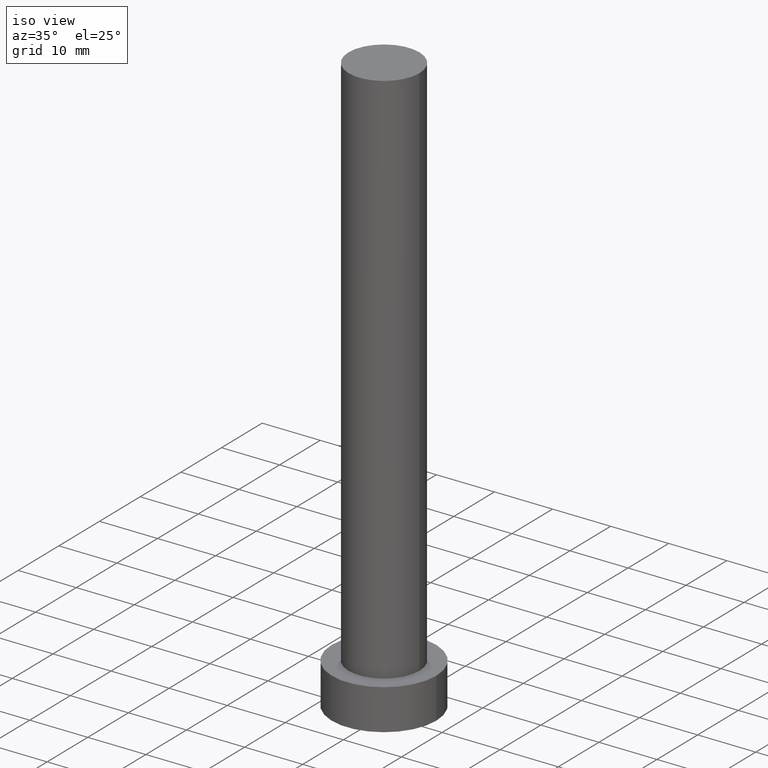
[diagram: clean part render]
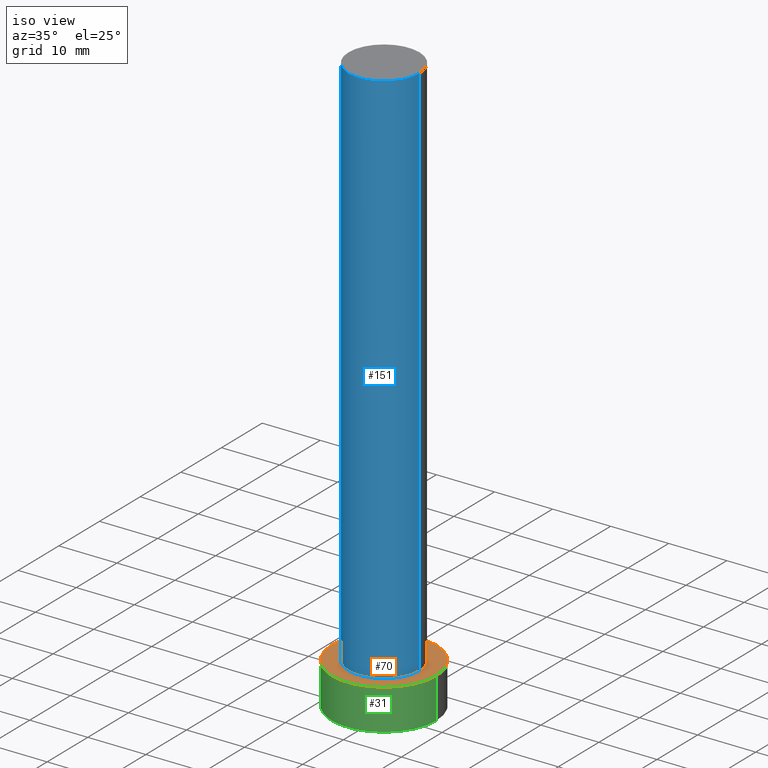
[diagram: same view with three faces highlighted in distinct colors, each labeled with its STEP entity id]
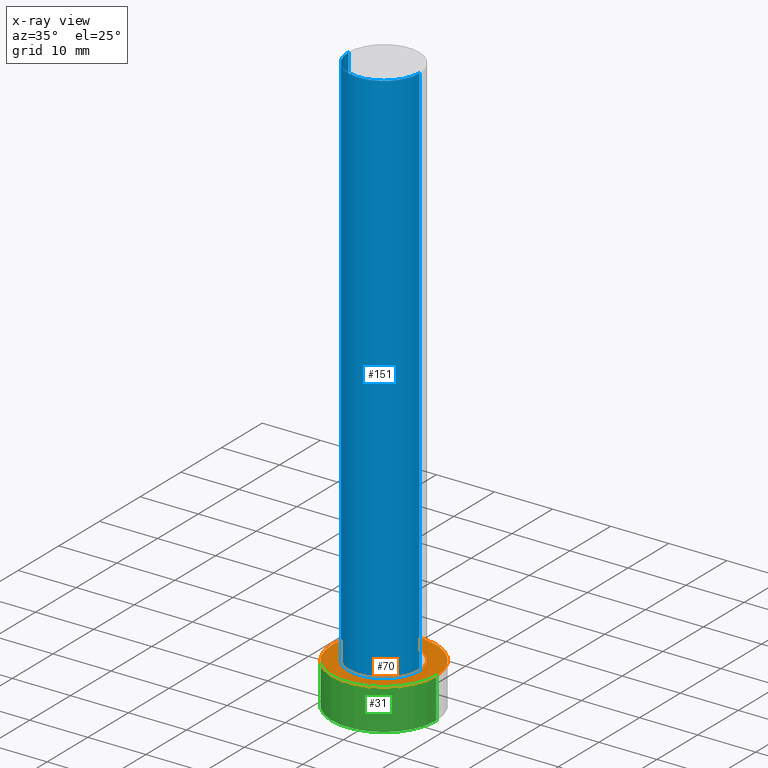
[diagram: x-ray of the same camera — body ghosted, the three highlighted faces saturated]
A machine part, iso view with three faces highlighted in distinct colors.
The next image is the same camera in x-ray (body ghosted, the three faces saturated) — at least one of them is partly hidden behind the body in this view.
Their STEP definitions:

[orange] entity #70 — the highlighted planar face has unit normal (0, 0, 1).
#1 = DIRECTION ( 'NONE',  ( 0.000000000000000000, 0.000000000000000000, 1.000000000000000000 ) ) ;
#8 = DIRECTION ( 'NONE',  ( 1.000000000000000000, 0.000000000000000000, 0.000000000000000000 ) ) ;
#16 = DIRECTION ( 'NONE',  ( 1.000000000000000000, 0.000000000000000000, 0.000000000000000000 ) ) ;
#24 = CARTESIAN_POINT ( 'NONE',  ( 0.000000000000000000, 0.000000000000000000, 7.000000000000000000 ) ) ;
#36 = EDGE_LOOP ( 'NONE', ( #55, #193 ) ) ;
#38 = VERTEX_POINT ( 'NONE', #191 ) ;
#45 = CIRCLE ( 'NONE', #81, 6.099999999999999645 ) ;
#55 = ORIENTED_EDGE ( 'NONE', *, *, #75, .T. ) ;
#59 = VERTEX_POINT ( 'NONE', #123 ) ;
#61 = EDGE_LOOP ( 'NONE', ( #212, #100 ) ) ;
#63 = CARTESIAN_POINT ( 'NONE',  ( 0.000000000000000000, 0.000000000000000000, 7.000000000000000000 ) ) ;
#70 = ADVANCED_FACE ( 'NONE', ( #229, #73 ), #168, .T. ) ;
#73 = FACE_OUTER_BOUND ( 'NONE', #36, .T. ) ;
#75 = EDGE_CURVE ( 'NONE', #38, #154, #206, .T. ) ;
#81 = AXIS2_PLACEMENT_3D ( 'NONE', #160, #88, #8 ) ;
#82 = AXIS2_PLACEMENT_3D ( 'NONE', #24, #1, #235 ) ;
#83 = AXIS2_PLACEMENT_3D ( 'NONE', #63, #185, #16 ) ;
#86 = DIRECTION ( 'NONE',  ( 0.000000000000000000, 0.000000000000000000, 1.000000000000000000 ) ) ;
#88 = DIRECTION ( 'NONE',  ( 0.000000000000000000, 0.000000000000000000, 1.000000000000000000 ) ) ;
#100 = ORIENTED_EDGE ( 'NONE', *, *, #105, .F. ) ;
#104 = AXIS2_PLACEMENT_3D ( 'NONE', #132, #108, #176 ) ;
#105 = EDGE_CURVE ( 'NONE', #245, #59, #127, .T. ) ;
#108 = DIRECTION ( 'NONE',  ( 0.000000000000000000, 0.000000000000000000, 1.000000000000000000 ) ) ;
#110 = CARTESIAN_POINT ( 'NONE',  ( 9.000000000000000000, 1.102182119232617714E-15, 7.000000000000000000 ) ) ;
#123 = CARTESIAN_POINT ( 'NONE',  ( -6.099999999999999645, 0.000000000000000000, 7.000000000000000000 ) ) ;
#127 = CIRCLE ( 'NONE', #104, 6.099999999999999645 ) ;
#132 = CARTESIAN_POINT ( 'NONE',  ( 0.000000000000000000, 0.000000000000000000, 7.000000000000000000 ) ) ;
#154 = VERTEX_POINT ( 'NONE', #110 ) ;
#156 = DIRECTION ( 'NONE',  ( 1.000000000000000000, 0.000000000000000000, 0.000000000000000000 ) ) ;
#159 = CARTESIAN_POINT ( 'NONE',  ( 0.000000000000000000, 0.000000000000000000, 7.000000000000000000 ) ) ;
#160 = CARTESIAN_POINT ( 'NONE',  ( 0.000000000000000000, 0.000000000000000000, 7.000000000000000000 ) ) ;
#162 = EDGE_CURVE ( 'NONE', #154, #38, #231, .T. ) ;
#168 = PLANE ( 'NONE',  #82 ) ;
#176 = DIRECTION ( 'NONE',  ( 1.000000000000000000, 0.000000000000000000, 0.000000000000000000 ) ) ;
#184 = AXIS2_PLACEMENT_3D ( 'NONE', #159, #86, #156 ) ;
#185 = DIRECTION ( 'NONE',  ( 0.000000000000000000, 0.000000000000000000, 1.000000000000000000 ) ) ;
#191 = CARTESIAN_POINT ( 'NONE',  ( -9.000000000000000000, 0.000000000000000000, 7.000000000000000000 ) ) ;
#193 = ORIENTED_EDGE ( 'NONE', *, *, #162, .T. ) ;
#205 = EDGE_CURVE ( 'NONE', #59, #245, #45, .T. ) ;
#206 = CIRCLE ( 'NONE', #83, 9.000000000000000000 ) ;
#212 = ORIENTED_EDGE ( 'NONE', *, *, #205, .F. ) ;
#229 = FACE_BOUND ( 'NONE', #61, .T. ) ;
#231 = CIRCLE ( 'NONE', #184, 9.000000000000000000 ) ;
#235 = DIRECTION ( 'NONE',  ( 1.000000000000000000, 0.000000000000000000, -0.000000000000000000 ) ) ;
#245 = VERTEX_POINT ( 'NONE', #248 ) ;
#248 = CARTESIAN_POINT ( 'NONE',  ( 6.099999999999999645, 7.470345474798852320E-16, 7.000000000000000000 ) ) ;

[blue] entity #151 — the highlighted cylindrical surface (partial cylindrical patch) has radius 6.1 mm, axis along (-0, -0, -1).
#8 = DIRECTION ( 'NONE',  ( 1.000000000000000000, 0.000000000000000000, 0.000000000000000000 ) ) ;
#12 = CARTESIAN_POINT ( 'NONE',  ( 0.000000000000000000, 0.000000000000000000, 100.0000000000000000 ) ) ;
#13 = FACE_OUTER_BOUND ( 'NONE', #77, .T. ) ;
#22 = ORIENTED_EDGE ( 'NONE', *, *, #220, .F. ) ;
#30 = DIRECTION ( 'NONE',  ( -0.000000000000000000, -0.000000000000000000, -1.000000000000000000 ) ) ;
#35 = VECTOR ( 'NONE', #182, 1000.000000000000000 ) ;
#42 = ORIENTED_EDGE ( 'NONE', *, *, #205, .T. ) ;
#44 = CARTESIAN_POINT ( 'NONE',  ( -6.099999999999999645, 0.000000000000000000, 100.0000000000000000 ) ) ;
#45 = CIRCLE ( 'NONE', #81, 6.099999999999999645 ) ;
#54 = CARTESIAN_POINT ( 'NONE',  ( 6.099999999999999645, 7.470345474798852320E-16, 100.0000000000000000 ) ) ;
#59 = VERTEX_POINT ( 'NONE', #123 ) ;
#77 = EDGE_LOOP ( 'NONE', ( #22, #172, #79, #42 ) ) ;
#78 = CARTESIAN_POINT ( 'NONE',  ( 6.099999999999999645, 7.470345474798852320E-16, 100.0000000000000000 ) ) ;
#79 = ORIENTED_EDGE ( 'NONE', *, *, #238, .T. ) ;
#81 = AXIS2_PLACEMENT_3D ( 'NONE', #160, #88, #8 ) ;
#84 = CYLINDRICAL_SURFACE ( 'NONE', #148, 6.099999999999999645 ) ;
#88 = DIRECTION ( 'NONE',  ( 0.000000000000000000, 0.000000000000000000, 1.000000000000000000 ) ) ;
#98 = VERTEX_POINT ( 'NONE', #44 ) ;
#109 = DIRECTION ( 'NONE',  ( 1.000000000000000000, 0.000000000000000000, 0.000000000000000000 ) ) ;
#111 = VECTOR ( 'NONE', #149, 1000.000000000000000 ) ;
#119 = CARTESIAN_POINT ( 'NONE',  ( -6.099999999999999645, 0.000000000000000000, 100.0000000000000000 ) ) ;
#123 = CARTESIAN_POINT ( 'NONE',  ( -6.099999999999999645, 0.000000000000000000, 7.000000000000000000 ) ) ;
#130 = CIRCLE ( 'NONE', #215, 6.099999999999999645 ) ;
#137 = LINE ( 'NONE', #119, #35 ) ;
#148 = AXIS2_PLACEMENT_3D ( 'NONE', #180, #30, #224 ) ;
#149 = DIRECTION ( 'NONE',  ( -0.000000000000000000, -0.000000000000000000, -1.000000000000000000 ) ) ;
#151 = ADVANCED_FACE ( 'NONE', ( #13 ), #84, .T. ) ;
#160 = CARTESIAN_POINT ( 'NONE',  ( 0.000000000000000000, 0.000000000000000000, 7.000000000000000000 ) ) ;
#172 = ORIENTED_EDGE ( 'NONE', *, *, #198, .F. ) ;
#174 = DIRECTION ( 'NONE',  ( 0.000000000000000000, 0.000000000000000000, 1.000000000000000000 ) ) ;
#180 = CARTESIAN_POINT ( 'NONE',  ( 0.000000000000000000, 0.000000000000000000, 100.0000000000000000 ) ) ;
#182 = DIRECTION ( 'NONE',  ( -0.000000000000000000, -0.000000000000000000, -1.000000000000000000 ) ) ;
#198 = EDGE_CURVE ( 'NONE', #98, #253, #130, .T. ) ;
#205 = EDGE_CURVE ( 'NONE', #59, #245, #45, .T. ) ;
#215 = AXIS2_PLACEMENT_3D ( 'NONE', #12, #174, #109 ) ;
#220 = EDGE_CURVE ( 'NONE', #253, #245, #244, .T. ) ;
#224 = DIRECTION ( 'NONE',  ( -1.000000000000000000, 0.000000000000000000, 0.000000000000000000 ) ) ;
#238 = EDGE_CURVE ( 'NONE', #98, #59, #137, .T. ) ;
#244 = LINE ( 'NONE', #54, #111 ) ;
#245 = VERTEX_POINT ( 'NONE', #248 ) ;
#248 = CARTESIAN_POINT ( 'NONE',  ( 6.099999999999999645, 7.470345474798852320E-16, 7.000000000000000000 ) ) ;
#253 = VERTEX_POINT ( 'NONE', #78 ) ;

[green] entity #31 — the highlighted cylindrical surface (partial cylindrical patch) has radius 9 mm, axis along (-0, -0, -1).
#2 = VERTEX_POINT ( 'NONE', #101 ) ;
#4 = ORIENTED_EDGE ( 'NONE', *, *, #75, .F. ) ;
#5 = EDGE_CURVE ( 'NONE', #38, #2, #171, .T. ) ;
#7 = AXIS2_PLACEMENT_3D ( 'NONE', #211, #99, #165 ) ;
#16 = DIRECTION ( 'NONE',  ( 1.000000000000000000, 0.000000000000000000, 0.000000000000000000 ) ) ;
#19 = FACE_OUTER_BOUND ( 'NONE', #20, .T. ) ;
#20 = EDGE_LOOP ( 'NONE', ( #234, #4, #21, #236 ) ) ;
#21 = ORIENTED_EDGE ( 'NONE', *, *, #5, .T. ) ;
#27 = AXIS2_PLACEMENT_3D ( 'NONE', #142, #233, #208 ) ;
#31 = ADVANCED_FACE ( 'NONE', ( #19 ), #39, .T. ) ;
#38 = VERTEX_POINT ( 'NONE', #191 ) ;
#39 = CYLINDRICAL_SURFACE ( 'NONE', #27, 9.000000000000000000 ) ;
#51 = CARTESIAN_POINT ( 'NONE',  ( 9.000000000000000000, 1.102182119232617714E-15, 0.000000000000000000 ) ) ;
#58 = EDGE_CURVE ( 'NONE', #2, #158, #186, .T. ) ;
#62 = DIRECTION ( 'NONE',  ( -0.000000000000000000, -0.000000000000000000, -1.000000000000000000 ) ) ;
#63 = CARTESIAN_POINT ( 'NONE',  ( 0.000000000000000000, 0.000000000000000000, 7.000000000000000000 ) ) ;
#64 = DIRECTION ( 'NONE',  ( -0.000000000000000000, -0.000000000000000000, -1.000000000000000000 ) ) ;
#75 = EDGE_CURVE ( 'NONE', #38, #154, #206, .T. ) ;
#83 = AXIS2_PLACEMENT_3D ( 'NONE', #63, #185, #16 ) ;
#96 = VECTOR ( 'NONE', #64, 1000.000000000000000 ) ;
#99 = DIRECTION ( 'NONE',  ( 0.000000000000000000, 0.000000000000000000, 1.000000000000000000 ) ) ;
#101 = CARTESIAN_POINT ( 'NONE',  ( -9.000000000000000000, 0.000000000000000000, 0.000000000000000000 ) ) ;
#110 = CARTESIAN_POINT ( 'NONE',  ( 9.000000000000000000, 1.102182119232617714E-15, 7.000000000000000000 ) ) ;
#141 = VECTOR ( 'NONE', #62, 1000.000000000000000 ) ;
#142 = CARTESIAN_POINT ( 'NONE',  ( 0.000000000000000000, 0.000000000000000000, 7.000000000000000000 ) ) ;
#154 = VERTEX_POINT ( 'NONE', #110 ) ;
#158 = VERTEX_POINT ( 'NONE', #51 ) ;
#165 = DIRECTION ( 'NONE',  ( 1.000000000000000000, 0.000000000000000000, 0.000000000000000000 ) ) ;
#171 = LINE ( 'NONE', #237, #96 ) ;
#185 = DIRECTION ( 'NONE',  ( 0.000000000000000000, 0.000000000000000000, 1.000000000000000000 ) ) ;
#186 = CIRCLE ( 'NONE', #7, 9.000000000000000000 ) ;
#191 = CARTESIAN_POINT ( 'NONE',  ( -9.000000000000000000, 0.000000000000000000, 7.000000000000000000 ) ) ;
#197 = LINE ( 'NONE', #214, #141 ) ;
#206 = CIRCLE ( 'NONE', #83, 9.000000000000000000 ) ;
#208 = DIRECTION ( 'NONE',  ( -1.000000000000000000, 0.000000000000000000, 0.000000000000000000 ) ) ;
#211 = CARTESIAN_POINT ( 'NONE',  ( 0.000000000000000000, 0.000000000000000000, 0.000000000000000000 ) ) ;
#214 = CARTESIAN_POINT ( 'NONE',  ( 9.000000000000000000, 1.102182119232617714E-15, 7.000000000000000000 ) ) ;
#233 = DIRECTION ( 'NONE',  ( -0.000000000000000000, -0.000000000000000000, -1.000000000000000000 ) ) ;
#234 = ORIENTED_EDGE ( 'NONE', *, *, #255, .F. ) ;
#236 = ORIENTED_EDGE ( 'NONE', *, *, #58, .T. ) ;
#237 = CARTESIAN_POINT ( 'NONE',  ( -9.000000000000000000, 0.000000000000000000, 7.000000000000000000 ) ) ;
#255 = EDGE_CURVE ( 'NONE', #154, #158, #197, .T. ) ;